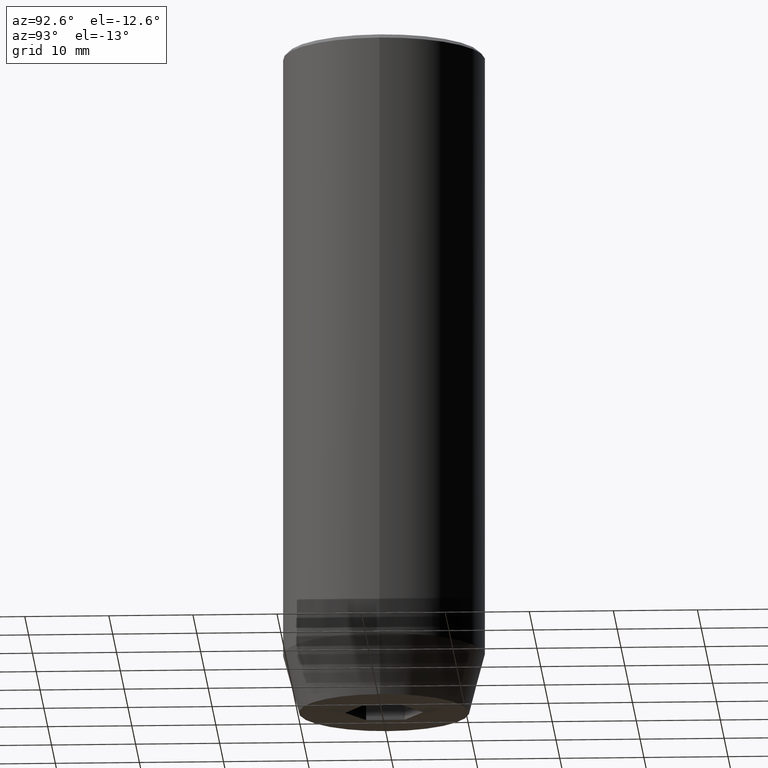
[diagram: clean part render]
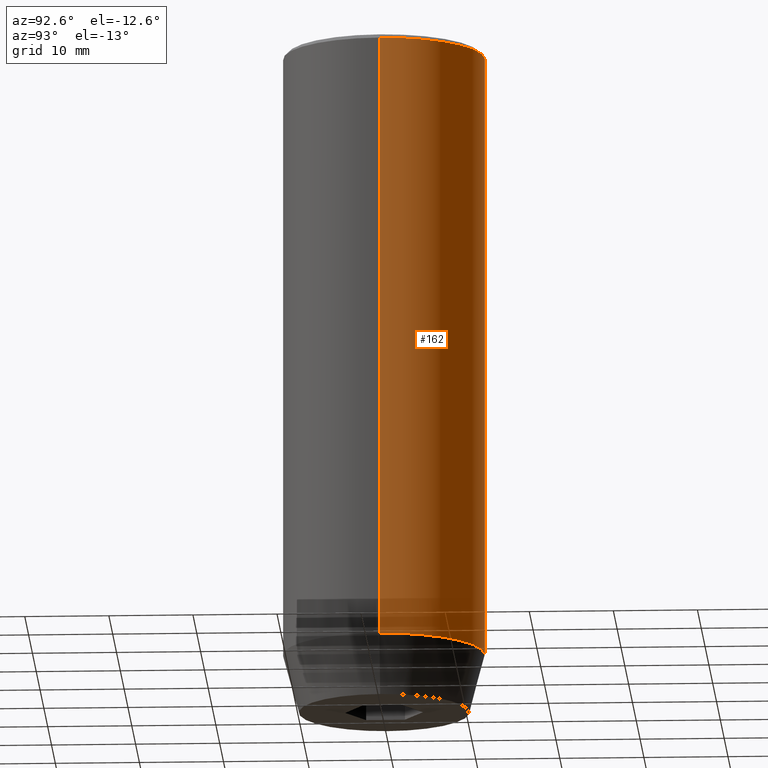
[diagram: same view with one face highlighted and labeled with its STEP entity id]
A machine part, auxiliary view. The second image highlights one B-rep face of the part: STEP entity #162.
In plain terms, the highlighted cylindrical surface (partial cylindrical patch) has radius 12 mm, axis along (-0, -0, 1).
Its self-contained STEP definition (entity closure, byte-faithful):
#2 = LINE ( 'NONE', #273, #563 ) ;
#11 = VECTOR ( 'NONE', #541, 1000.000000000000000 ) ;
#27 = EDGE_LOOP ( 'NONE', ( #191, #413, #300, #549 ) ) ;
#50 = DIRECTION ( 'NONE',  ( -0.000000000000000000, -0.000000000000000000, 1.000000000000000000 ) ) ;
#51 = CARTESIAN_POINT ( 'NONE',  ( -12.00000000000000000, 1.469576158976823947E-15, -0.5000000000000056621 ) ) ;
#66 = EDGE_CURVE ( 'NONE', #249, #104, #216, .T. ) ;
#71 = DIRECTION ( 'NONE',  ( 0.000000000000000000, 0.000000000000000000, -1.000000000000000000 ) ) ;
#81 = DIRECTION ( 'NONE',  ( -0.000000000000000000, -0.000000000000000000, 1.000000000000000000 ) ) ;
#82 = AXIS2_PLACEMENT_3D ( 'NONE', #494, #81, #452 ) ;
#83 = CARTESIAN_POINT ( 'NONE',  ( -12.00000000000000000, 1.469576158976823947E-15, 0.000000000000000000 ) ) ;
#104 = VERTEX_POINT ( 'NONE', #580 ) ;
#125 = FACE_OUTER_BOUND ( 'NONE', #27, .T. ) ;
#126 = DIRECTION ( 'NONE',  ( -0.000000000000000000, -0.000000000000000000, 1.000000000000000000 ) ) ;
#130 = AXIS2_PLACEMENT_3D ( 'NONE', #136, #126, #318 ) ;
#134 = CARTESIAN_POINT ( 'NONE',  ( 12.00000000000000000, 0.000000000000000000, -73.00000000000001421 ) ) ;
#136 = CARTESIAN_POINT ( 'NONE',  ( 0.000000000000000000, 0.000000000000000000, -73.00000000000001421 ) ) ;
#162 = ADVANCED_FACE ( 'NONE', ( #125 ), #309, .T. ) ;
#187 = CIRCLE ( 'NONE', #130, 12.00000000000000000 ) ;
#191 = ORIENTED_EDGE ( 'NONE', *, *, #552, .T. ) ;
#201 = CARTESIAN_POINT ( 'NONE',  ( -12.00000000000000000, 1.469576158976823947E-15, -73.00000000000001421 ) ) ;
#216 = CIRCLE ( 'NONE', #449, 12.00000000000000000 ) ;
#230 = LINE ( 'NONE', #83, #11 ) ;
#249 = VERTEX_POINT ( 'NONE', #51 ) ;
#273 = CARTESIAN_POINT ( 'NONE',  ( 12.00000000000000000, 0.000000000000000000, 0.000000000000000000 ) ) ;
#286 = VERTEX_POINT ( 'NONE', #201 ) ;
#300 = ORIENTED_EDGE ( 'NONE', *, *, #66, .T. ) ;
#309 = CYLINDRICAL_SURFACE ( 'NONE', #82, 12.00000000000000000 ) ;
#318 = DIRECTION ( 'NONE',  ( 1.000000000000000000, 0.000000000000000000, 0.000000000000000000 ) ) ;
#413 = ORIENTED_EDGE ( 'NONE', *, *, #543, .T. ) ;
#440 = DIRECTION ( 'NONE',  ( 1.000000000000000000, 0.000000000000000000, 0.000000000000000000 ) ) ;
#449 = AXIS2_PLACEMENT_3D ( 'NONE', #483, #71, #440 ) ;
#452 = DIRECTION ( 'NONE',  ( 1.000000000000000000, 0.000000000000000000, 0.000000000000000000 ) ) ;
#473 = EDGE_CURVE ( 'NONE', #497, #104, #2, .T. ) ;
#483 = CARTESIAN_POINT ( 'NONE',  ( 0.000000000000000000, 0.000000000000000000, -0.5000000000000056621 ) ) ;
#494 = CARTESIAN_POINT ( 'NONE',  ( 0.000000000000000000, 0.000000000000000000, 0.000000000000000000 ) ) ;
#497 = VERTEX_POINT ( 'NONE', #134 ) ;
#541 = DIRECTION ( 'NONE',  ( -0.000000000000000000, -0.000000000000000000, 1.000000000000000000 ) ) ;
#543 = EDGE_CURVE ( 'NONE', #286, #249, #230, .T. ) ;
#549 = ORIENTED_EDGE ( 'NONE', *, *, #473, .F. ) ;
#552 = EDGE_CURVE ( 'NONE', #497, #286, #187, .T. ) ;
#563 = VECTOR ( 'NONE', #50, 1000.000000000000000 ) ;
#580 = CARTESIAN_POINT ( 'NONE',  ( 12.00000000000000000, 0.000000000000000000, -0.5000000000000056621 ) ) ;